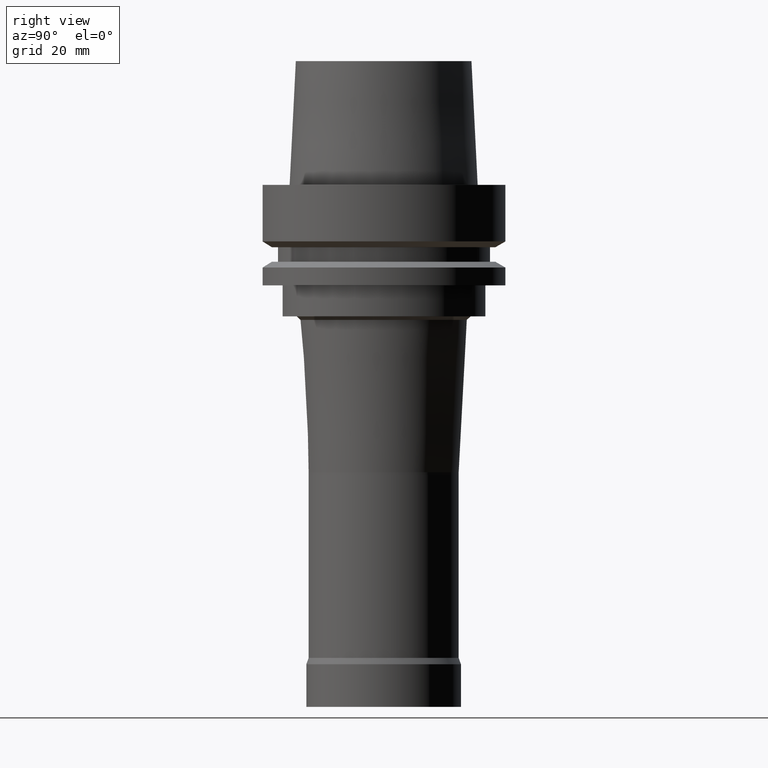
[diagram: clean part render]
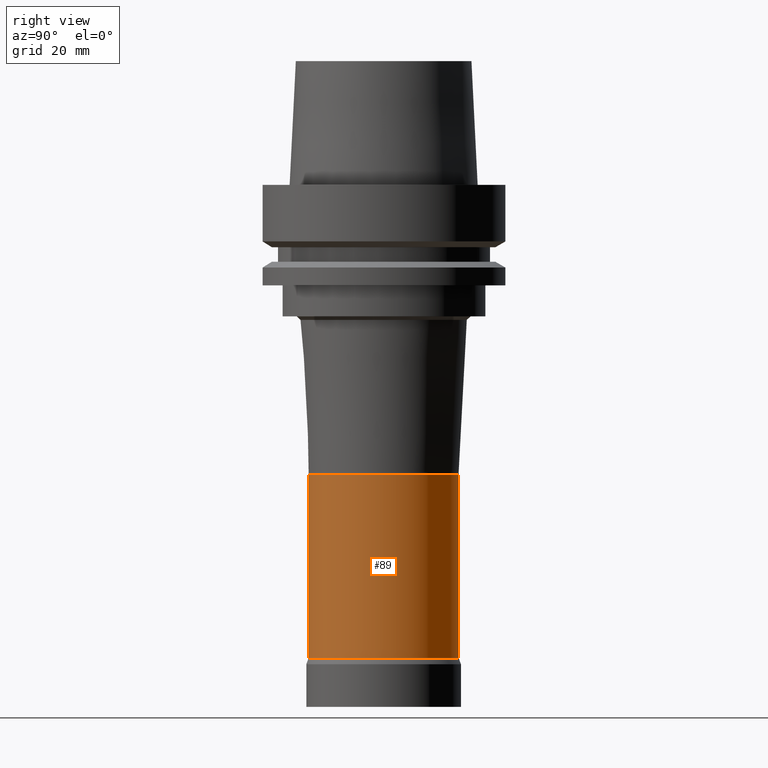
[diagram: same view with one face highlighted and labeled with its STEP entity id]
A machine part, right view. The second image highlights one B-rep face of the part: STEP entity #89.
In plain terms, the highlighted cylindrical surface (bore or boss wall) has radius 19.4 mm, axis along (-0, -0, 1).
Its self-contained STEP definition (entity closure, byte-faithful):
#89=ADVANCED_FACE('',(#138,#139),#140,.T.);
#138=FACE_BOUND('',#196,.T.);
#139=FACE_BOUND('',#197,.T.);
#140=CYLINDRICAL_SURFACE('',#198,19.4);
#196=EDGE_LOOP('',(#282));
#197=EDGE_LOOP('',(#283));
#198=AXIS2_PLACEMENT_3D('',#284,#285,#286);
#282=ORIENTED_EDGE('',*,*,#325,.F.);
#283=ORIENTED_EDGE('',*,*,#324,.T.);
#284=CARTESIAN_POINT('',(6.04221105183257E-015,1.20844221036651E-014,-98.67679491));
#285=DIRECTION('',(-6.12323399573677E-017,-1.22464679914735E-016,1.0));
#286=DIRECTION('',(-1.23259516440783E-032,1.0,1.22464679914735E-016));
#324=EDGE_CURVE('',#357,#357,#358,.T.);
#325=EDGE_CURVE('',#359,#359,#360,.T.);
#357=VERTEX_POINT('',#395);
#358=CIRCLE('',#396,19.4);
#359=VERTEX_POINT('',#397);
#360=CIRCLE('',#398,19.4);
#395=CARTESIAN_POINT('',(4.59242549680257E-015,19.4,-75.0));
#396=AXIS2_PLACEMENT_3D('',#447,#448,#449);
#397=CARTESIAN_POINT('',(7.49199660686256E-015,19.4,-122.35358982));
#398=AXIS2_PLACEMENT_3D('',#450,#451,#452);
#447=CARTESIAN_POINT('',(4.59242549680257E-015,9.18485099360515E-015,-75.0));
#448=DIRECTION('',(6.12323399573677E-017,1.22464679914735E-016,-1.0));
#449=DIRECTION('',(-1.23259516440783E-032,1.0,1.22464679914735E-016));
#450=CARTESIAN_POINT('',(7.49199660686256E-015,1.49839932137251E-014,-122.35358982));
#451=DIRECTION('',(6.12323399573677E-017,1.22464679914735E-016,-1.0));
#452=DIRECTION('',(-1.23259516440783E-032,1.0,1.22464679914735E-016));